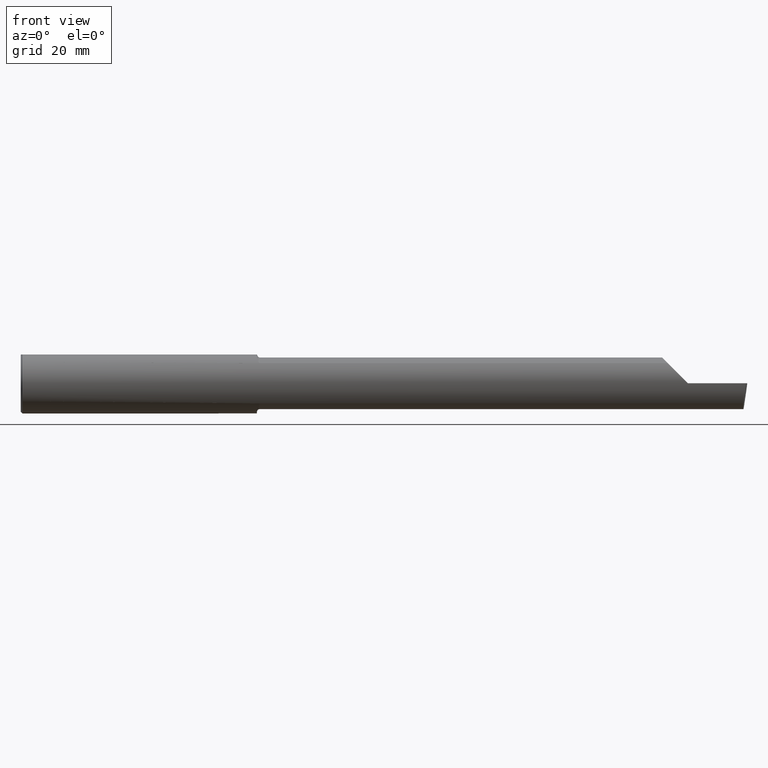
[diagram: clean part render]
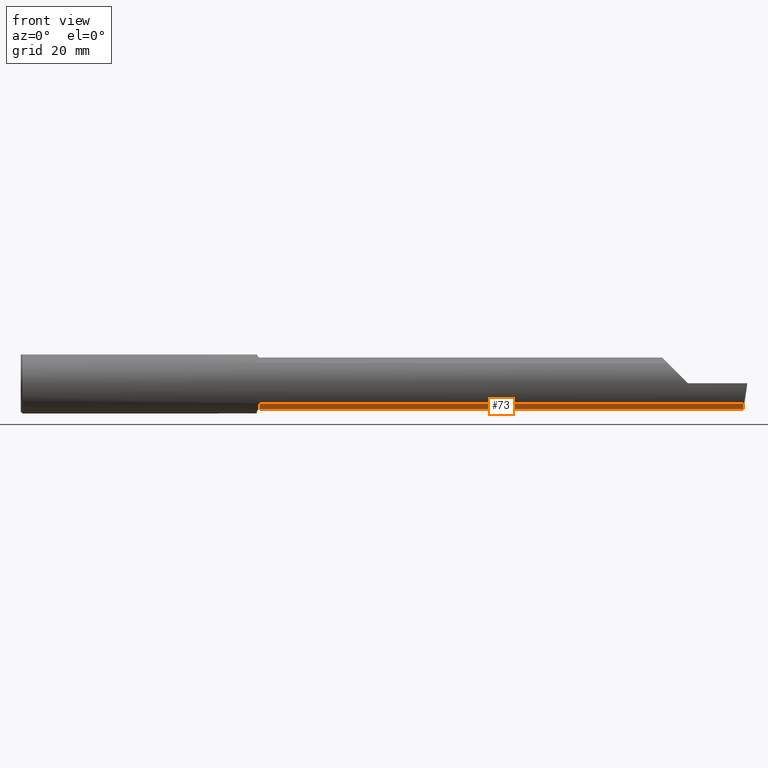
[diagram: same view with one face highlighted and labeled with its STEP entity id]
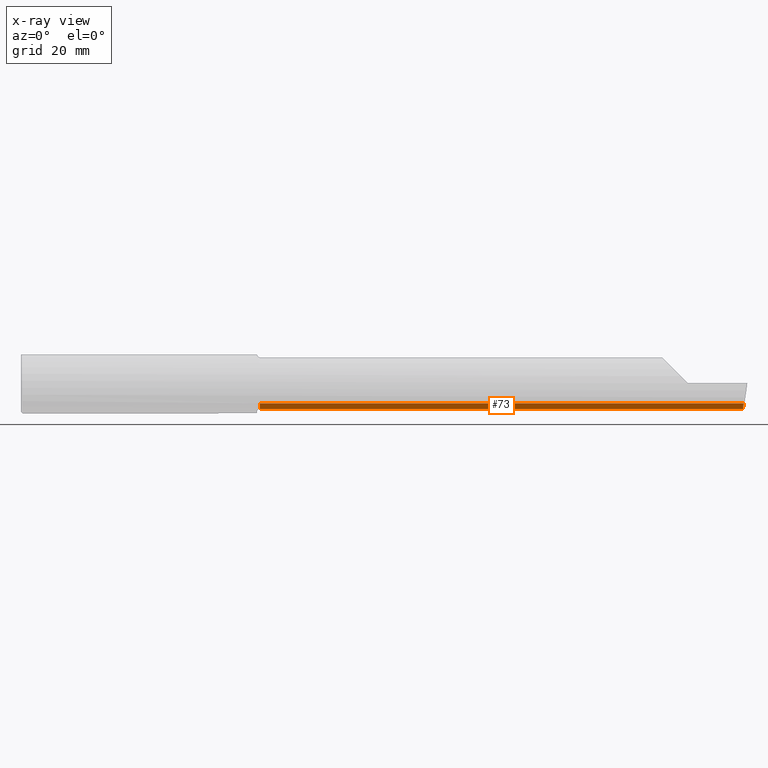
[diagram: x-ray of the same camera — body ghosted, the highlighted face saturated]
A machine part, front view. The second image highlights one B-rep face of the part: STEP entity #73.
The next image is the same camera in x-ray: the body ghosted, the highlighted face saturated — about 0% of this face is hidden behind the body in this view.
In plain terms, the highlighted cylindrical surface (edge-blend (fillet) strip) has radius 5.414 mm, axis along (-1, -0, -0).
Its self-contained STEP definition (entity closure, byte-faithful):
#32 = ORIENTED_EDGE ( 'NONE', *, *, #849, .F. ) ;
#44 = EDGE_CURVE ( 'NONE', #128, #101, #795, .T. ) ;
#53 = ORIENTED_EDGE ( 'NONE', *, *, #790, .F. ) ;
#73 = ADVANCED_FACE ( 'NONE', ( #392 ), #185, .T. ) ;
#90 = VERTEX_POINT ( 'NONE', #254 ) ;
#92 = EDGE_LOOP ( 'NONE', ( #707, #572, #53, #95, #32 ) ) ;
#95 = ORIENTED_EDGE ( 'NONE', *, *, #648, .T. ) ;
#100 = DIRECTION ( 'NONE',  ( -1.000000000000000000, -0.000000000000000000, -0.000000000000000000 ) ) ;
#101 = VERTEX_POINT ( 'NONE', #520 ) ;
#118 = CARTESIAN_POINT ( 'NONE',  ( 0.000000000000000000, -0.05299999999999998462, 0.000000000000000000 ) ) ;
#128 = VERTEX_POINT ( 'NONE', #415 ) ;
#133 = CARTESIAN_POINT ( 'NONE',  ( 5.964907988924525561, -0.1021668565906571902, -0.2131499999999999506 ) ) ;
#146 = VECTOR ( 'NONE', #461, 39.37007874015748143 ) ;
#171 = CARTESIAN_POINT ( 'NONE',  ( 3.760000000000000231, -0.1868028301886797693, -0.1659208399614083285 ) ) ;
#176 = DIRECTION ( 'NONE',  ( 0.000000000000000000, 0.000000000000000000, 1.000000000000000000 ) ) ;
#184 = CARTESIAN_POINT ( 'NONE',  ( 6.000000000000000888, -0.05299999999999998462, -0.2131499999999999229 ) ) ;
#185 = CYLINDRICAL_SURFACE ( 'NONE', #342, 0.2131499999999998951 ) ;
#192 = CARTESIAN_POINT ( 'NONE',  ( 5.968492717492765109, -0.1868028301886797693, -0.1659208399614083285 ) ) ;
#202 =( BOUNDED_CURVE ( )  B_SPLINE_CURVE ( 3, ( #326, #863, #133, #667 ),
 .UNSPECIFIED., .F., .F. ) 
 B_SPLINE_CURVE_WITH_KNOTS ( ( 4, 4 ),
 ( 5.814587959757558266, 6.493234751459799448 ),
 .UNSPECIFIED. ) 
 CURVE ( )  GEOMETRIC_REPRESENTATION_ITEM ( )  RATIONAL_B_SPLINE_CURVE ( ( 1.000000000000000000, 0.9619867256453021875, 0.9619867256453021875, 1.000000000000000000 ) ) 
 REPRESENTATION_ITEM ( '' )  );
#254 = CARTESIAN_POINT ( 'NONE',  ( 5.966195468375011579, -0.05299999999999998462, -0.2131499999999999229 ) ) ;
#267 = CARTESIAN_POINT ( 'NONE',  ( 1.975000000000000755, -0.1868028301886807130, -0.1659208399614071627 ) ) ;
#272 = VECTOR ( 'NONE', #595, 39.37007874015748143 ) ;
#326 = CARTESIAN_POINT ( 'NONE',  ( 5.968492717492765109, -0.1868028301886797693, -0.1659208399614083285 ) ) ;
#342 = AXIS2_PLACEMENT_3D ( 'NONE', #118, #654, #176 ) ;
#392 = FACE_OUTER_BOUND ( 'NONE', #92, .T. ) ;
#413 = DIRECTION ( 'NONE',  ( -1.000000000000000000, -0.000000000000000000, -0.000000000000000000 ) ) ;
#415 = CARTESIAN_POINT ( 'NONE',  ( 5.544999999999999929, -0.05299999999999998462, -0.2131499999999999229 ) ) ;
#446 = EDGE_CURVE ( 'NONE', #90, #128, #719, .T. ) ;
#461 = DIRECTION ( 'NONE',  ( -1.000000000000000000, -0.000000000000000000, -0.000000000000000000 ) ) ;
#464 = CARTESIAN_POINT ( 'NONE',  ( 0.000000000000000000, -0.05299999999999996381, -0.2131499999999998951 ) ) ;
#520 = CARTESIAN_POINT ( 'NONE',  ( 1.975000000000000755, -0.05299999999999996381, -0.2131499999999995620 ) ) ;
#542 = DIRECTION ( 'NONE',  ( 0.000000000000000000, 0.000000000000000000, 1.000000000000000000 ) ) ;
#554 = VERTEX_POINT ( 'NONE', #267 ) ;
#572 = ORIENTED_EDGE ( 'NONE', *, *, #446, .F. ) ;
#595 = DIRECTION ( 'NONE',  ( -1.000000000000000000, 5.691349986800549142E-18, -0.000000000000000000 ) ) ;
#599 = CIRCLE ( 'NONE', #610, 0.2131499999999995620 ) ;
#610 = AXIS2_PLACEMENT_3D ( 'NONE', #730, #413, #542 ) ;
#648 = EDGE_CURVE ( 'NONE', #822, #554, #846, .T. ) ;
#654 = DIRECTION ( 'NONE',  ( -1.000000000000000000, -0.000000000000000000, -0.000000000000000000 ) ) ;
#667 = CARTESIAN_POINT ( 'NONE',  ( 5.966195468375011579, -0.05299999999999998462, -0.2131499999999999229 ) ) ;
#682 = VECTOR ( 'NONE', #100, 39.37007874015748143 ) ;
#707 = ORIENTED_EDGE ( 'NONE', *, *, #44, .F. ) ;
#719 = LINE ( 'NONE', #184, #272 ) ;
#730 = CARTESIAN_POINT ( 'NONE',  ( 1.975000000000000755, -0.05299999999999998462, 0.000000000000000000 ) ) ;
#790 = EDGE_CURVE ( 'NONE', #822, #90, #202, .T. ) ;
#795 = LINE ( 'NONE', #464, #146 ) ;
#822 = VERTEX_POINT ( 'NONE', #192 ) ;
#846 = LINE ( 'NONE', #171, #682 ) ;
#849 = EDGE_CURVE ( 'NONE', #101, #554, #599, .T. ) ;
#863 = CARTESIAN_POINT ( 'NONE',  ( 5.965703997523712054, -0.1485302233682062600, -0.1967848538638755085 ) ) ;